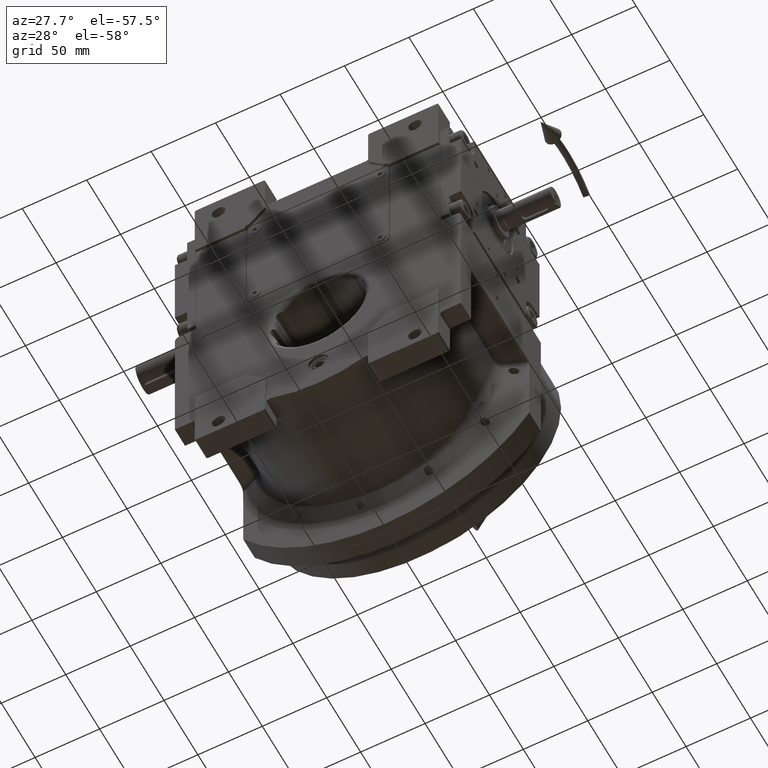
[diagram: clean part render]
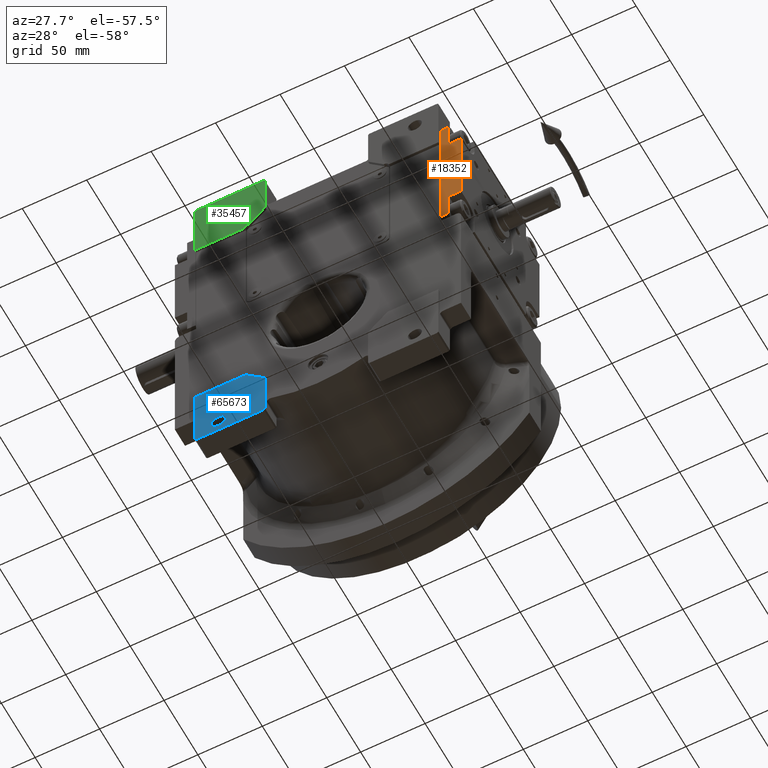
[diagram: same view with three faces highlighted in distinct colors, each labeled with its STEP entity id]
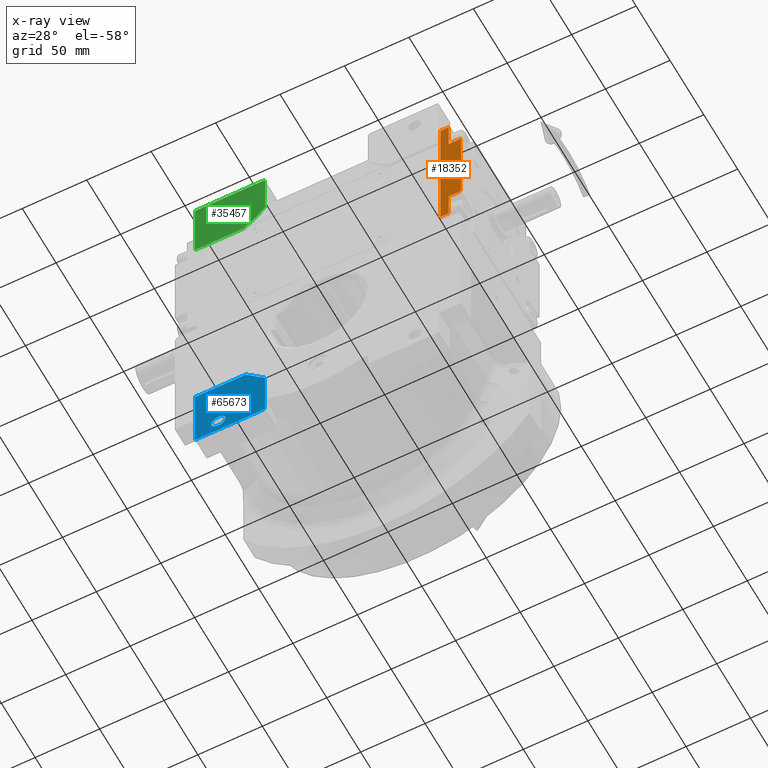
[diagram: x-ray of the same camera — body ghosted, the three highlighted faces saturated]
A machine part, auxiliary view with three faces highlighted in distinct colors.
The next image is the same camera in x-ray (body ghosted, the three faces saturated) — at least one of them is partly hidden behind the body in this view.
Their STEP definitions:

[orange] entity #18352 — the highlighted planar face has unit normal (0, -1, 0).
#1 = EDGE_CURVE ( 'NONE', #44348, #53429, #52238, .T. ) ;
#3552 = VERTEX_POINT ( 'NONE', #43085 ) ;
#4095 = ORIENTED_EDGE ( 'NONE', *, *, #23475, .F. ) ;
#4280 = ORIENTED_EDGE ( 'NONE', *, *, #11429, .T. ) ;
#4504 = DIRECTION ( 'NONE',  ( 5.662137425588299618E-14, 7.549516567451828092E-15, 1.000000000000000000 ) ) ;
#5056 = CARTESIAN_POINT ( 'NONE',  ( -53.50000000000162004, -16.00000000000052935, -33.50000000000376588 ) ) ;
#5388 = LINE ( 'NONE', #5056, #33069 ) ;
#6778 = CARTESIAN_POINT ( 'NONE',  ( -53.50000000000304112, -5.273559366969493567E-13, -55.00000000000347455 ) ) ;
#7313 = CARTESIAN_POINT ( 'NONE',  ( -53.49999999999669598, 4.163336342344337027E-13, 54.99999999999644018 ) ) ;
#8290 = LINE ( 'NONE', #13502, #21841 ) ;
#8733 = CARTESIAN_POINT ( 'NONE',  ( -53.50000000000330402, -5.273559366969493567E-13, -58.00000000000348166 ) ) ;
#10859 = CARTESIAN_POINT ( 'NONE',  ( -53.49999999999810996, -16.00000000000000000, 33.49999999999727862 ) ) ;
#11429 = EDGE_CURVE ( 'NONE', #3552, #48123, #20808, .T. ) ;
#11688 = DIRECTION ( 'NONE',  ( 5.662137425588299618E-14, 7.549516567451828092E-15, 1.000000000000000000 ) ) ;
#12230 = VECTOR ( 'NONE', #23282, 1000.000000000000000 ) ;
#12672 = AXIS2_PLACEMENT_3D ( 'NONE', #8733, #62251, #4504 ) ;
#13502 = CARTESIAN_POINT ( 'NONE',  ( -53.50000000000330402, -6.500000000000519584, -55.00000000000347455 ) ) ;
#16704 = CARTESIAN_POINT ( 'NONE',  ( -53.49999999999837286, -6.499999999999992006, 33.49999999999769784 ) ) ;
#18352 = ADVANCED_FACE ( 'NONE', ( #61936 ), #20180, .T. ) ;
#19293 = EDGE_CURVE ( 'NONE', #53429, #41687, #25070, .T. ) ;
#20180 = PLANE ( 'NONE',  #12672 ) ;
#20446 = DIRECTION ( 'NONE',  ( -1.978114775870341592E-28, -1.000000000000000000, -7.549516567451820204E-15 ) ) ;
#20808 = LINE ( 'NONE', #37137, #38944 ) ;
#21661 = VECTOR ( 'NONE', #32069, 1000.000000000000000 ) ;
#21841 = VECTOR ( 'NONE', #66676, 1000.000000000000000 ) ;
#22107 = LINE ( 'NONE', #6778, #49673 ) ;
#22514 = VERTEX_POINT ( 'NONE', #35765 ) ;
#23282 = DIRECTION ( 'NONE',  ( -1.978114775870341592E-28, -1.000000000000000000, -7.549516567451820204E-15 ) ) ;
#23475 = EDGE_CURVE ( 'NONE', #43277, #41687, #54968, .T. ) ;
#25070 = LINE ( 'NONE', #46291, #54962 ) ;
#30059 = ORIENTED_EDGE ( 'NONE', *, *, #60323, .F. ) ;
#30997 = ORIENTED_EDGE ( 'NONE', *, *, #46447, .T. ) ;
#31320 = DIRECTION ( 'NONE',  ( 5.662137425588299618E-14, 7.549516567451828092E-15, 1.000000000000000000 ) ) ;
#31390 = EDGE_CURVE ( 'NONE', #22514, #32628, #63260, .T. ) ;
#32069 = DIRECTION ( 'NONE',  ( 1.978114775870341592E-28, 1.000000000000000000, 7.549516567451820204E-15 ) ) ;
#32628 = VERTEX_POINT ( 'NONE', #62301 ) ;
#33069 = VECTOR ( 'NONE', #63480, 1000.000000000000000 ) ;
#33080 = ORIENTED_EDGE ( 'NONE', *, *, #48737, .T. ) ;
#33918 = VECTOR ( 'NONE', #47942, 1000.000000000000000 ) ;
#34313 = ORIENTED_EDGE ( 'NONE', *, *, #19293, .T. ) ;
#35765 = CARTESIAN_POINT ( 'NONE',  ( -53.50000000000162004, -16.00000000000052935, -33.50000000000376588 ) ) ;
#37137 = CARTESIAN_POINT ( 'NONE',  ( -53.50000000000304112, -5.273559366969493567E-13, -55.00000000000347455 ) ) ;
#37518 = CARTESIAN_POINT ( 'NONE',  ( -53.50000000000162004, -16.00000000000052935, -33.50000000000376588 ) ) ;
#38944 = VECTOR ( 'NONE', #20446, 1000.000000000000000 ) ;
#41687 = VERTEX_POINT ( 'NONE', #42305 ) ;
#42305 = CARTESIAN_POINT ( 'NONE',  ( -53.49999999999695888, -6.499999999999589662, 54.99999999999749889 ) ) ;
#42500 = ORIENTED_EDGE ( 'NONE', *, *, #31390, .F. ) ;
#43085 = CARTESIAN_POINT ( 'NONE',  ( -53.50000000000304112, -5.273559366969493567E-13, -55.00000000000347455 ) ) ;
#43277 = VERTEX_POINT ( 'NONE', #57627 ) ;
#44348 = VERTEX_POINT ( 'NONE', #51899 ) ;
#46291 = CARTESIAN_POINT ( 'NONE',  ( -53.49999999999837286, -6.499999999999992006, 33.49999999999769784 ) ) ;
#46447 = EDGE_CURVE ( 'NONE', #48123, #32628, #8290, .T. ) ;
#47942 = DIRECTION ( 'NONE',  ( 1.978114775870341592E-28, 1.000000000000000000, 7.549516567451820204E-15 ) ) ;
#48123 = VERTEX_POINT ( 'NONE', #62161 ) ;
#48737 = EDGE_CURVE ( 'NONE', #22514, #44348, #5388, .T. ) ;
#49673 = VECTOR ( 'NONE', #11688, 1000.000000000000000 ) ;
#50735 = EDGE_LOOP ( 'NONE', ( #30059, #4280, #30997, #42500, #33080, #55387, #34313, #4095 ) ) ;
#51899 = CARTESIAN_POINT ( 'NONE',  ( -53.49999999999810996, -16.00000000000000000, 33.49999999999727862 ) ) ;
#52238 = LINE ( 'NONE', #10859, #21661 ) ;
#53429 = VERTEX_POINT ( 'NONE', #16704 ) ;
#54962 = VECTOR ( 'NONE', #31320, 1000.000000000000000 ) ;
#54968 = LINE ( 'NONE', #7313, #12230 ) ;
#55387 = ORIENTED_EDGE ( 'NONE', *, *, #1, .T. ) ;
#57627 = CARTESIAN_POINT ( 'NONE',  ( -53.49999999999669598, 4.163336342344337027E-13, 54.99999999999644018 ) ) ;
#60323 = EDGE_CURVE ( 'NONE', #3552, #43277, #22107, .T. ) ;
#61936 = FACE_OUTER_BOUND ( 'NONE', #50735, .T. ) ;
#62161 = CARTESIAN_POINT ( 'NONE',  ( -53.50000000000330402, -6.500000000000519584, -55.00000000000347455 ) ) ;
#62251 = DIRECTION ( 'NONE',  ( -1.000000000000000000, 6.571413692480986833E-28, 5.662137425588299618E-14 ) ) ;
#62301 = CARTESIAN_POINT ( 'NONE',  ( -53.50000000000188294, -6.500000000000117240, -33.50000000000376588 ) ) ;
#63260 = LINE ( 'NONE', #37518, #33918 ) ;
#63480 = DIRECTION ( 'NONE',  ( 5.662137425588299618E-14, 7.549516567451828092E-15, 1.000000000000000000 ) ) ;
#66676 = DIRECTION ( 'NONE',  ( 5.662137425588299618E-14, 7.549516567451828092E-15, 1.000000000000000000 ) ) ;

[blue] entity #65673 — the highlighted planar face has unit normal (0, -1, 0).
#1353 = VECTOR ( 'NONE', #68192, 1000.000000000000000 ) ;
#4656 = DIRECTION ( 'NONE',  ( -0.7071067811865474617, 0.000000000000000000, 0.7071067811865474617 ) ) ;
#5211 = EDGE_LOOP ( 'NONE', ( #6673, #46357 ) ) ;
#5299 = VECTOR ( 'NONE', #15277, 1000.000000000000114 ) ;
#6522 = DIRECTION ( 'NONE',  ( 0.7071067811865474617, 0.000000000000000000, -0.7071067811865474617 ) ) ;
#6673 = ORIENTED_EDGE ( 'NONE', *, *, #17862, .T. ) ;
#6984 = DIRECTION ( 'NONE',  ( 0.000000000000000000, 1.000000000000000000, 0.000000000000000000 ) ) ;
#8180 = VECTOR ( 'NONE', #6522, 1000.000000000000114 ) ;
#9437 = AXIS2_PLACEMENT_3D ( 'NONE', #40200, #57242, #29058 ) ;
#11407 = LINE ( 'NONE', #58707, #8180 ) ;
#12719 = CARTESIAN_POINT ( 'NONE',  ( -40.00000000000000000, -55.50000000000000000, -99.00000000000000000 ) ) ;
#14529 = LINE ( 'NONE', #20810, #42355 ) ;
#15277 = DIRECTION ( 'NONE',  ( 0.7071067811865474617, 0.000000000000000000, 0.7071067811865474617 ) ) ;
#15441 = FACE_BOUND ( 'NONE', #5211, .T. ) ;
#15716 = CARTESIAN_POINT ( 'NONE',  ( -93.50000000000000000, -55.50000000000000000, -100.0000000000000000 ) ) ;
#16054 = VERTEX_POINT ( 'NONE', #27850 ) ;
#16827 = VECTOR ( 'NONE', #4656, 1000.000000000000114 ) ;
#17862 = EDGE_CURVE ( 'NONE', #26681, #16054, #21657, .T. ) ;
#19360 = FACE_OUTER_BOUND ( 'NONE', #41527, .T. ) ;
#20810 = CARTESIAN_POINT ( 'NONE',  ( -94.50000000000000000, -55.50000000000000000, -45.00000000000000000 ) ) ;
#21657 = CIRCLE ( 'NONE', #9437, 5.500000000000005329 ) ;
#22407 = EDGE_CURVE ( 'NONE', #23029, #28307, #63238, .T. ) ;
#22444 = ORIENTED_EDGE ( 'NONE', *, *, #53841, .T. ) ;
#22974 = DIRECTION ( 'NONE',  ( -1.000000000000000000, 0.000000000000000000, 0.000000000000000000 ) ) ;
#23029 = VERTEX_POINT ( 'NONE', #65450 ) ;
#23805 = LINE ( 'NONE', #12719, #64919 ) ;
#26259 = AXIS2_PLACEMENT_3D ( 'NONE', #48050, #6984, #53607 ) ;
#26311 = CARTESIAN_POINT ( 'NONE',  ( -94.50000000000000000, -55.50000000000000000, -45.00000000000000000 ) ) ;
#26681 = VERTEX_POINT ( 'NONE', #52305 ) ;
#27138 = EDGE_CURVE ( 'NONE', #36252, #44682, #62398, .T. ) ;
#27850 = CARTESIAN_POINT ( 'NONE',  ( -81.69999999999998863, -55.50000000000000000, -89.00000000000000000 ) ) ;
#28307 = VERTEX_POINT ( 'NONE', #65564 ) ;
#28532 = ORIENTED_EDGE ( 'NONE', *, *, #35666, .T. ) ;
#29058 = DIRECTION ( 'NONE',  ( 1.000000000000000000, 0.000000000000000000, 0.000000000000000000 ) ) ;
#29097 = CARTESIAN_POINT ( 'NONE',  ( -94.50000000000000000, -55.50000000000000000, -99.00000000000000000 ) ) ;
#30913 = DIRECTION ( 'NONE',  ( 0.000000000000000000, 0.000000000000000000, -1.000000000000000000 ) ) ;
#31285 = CARTESIAN_POINT ( 'NONE',  ( -55.00000000000000000, -55.50000000000000000, -45.00000000000000000 ) ) ;
#31566 = ORIENTED_EDGE ( 'NONE', *, *, #41988, .T. ) ;
#34111 = LINE ( 'NONE', #66083, #36547 ) ;
#35028 = DIRECTION ( 'NONE',  ( 0.000000000000000000, -1.000000000000000000, 0.000000000000000000 ) ) ;
#35666 = EDGE_CURVE ( 'NONE', #44682, #61217, #34111, .T. ) ;
#36252 = VERTEX_POINT ( 'NONE', #49332 ) ;
#36299 = CARTESIAN_POINT ( 'NONE',  ( 0.000000000000000000, -55.50000000000000000, 0.000000000000000000 ) ) ;
#36547 = VECTOR ( 'NONE', #22974, 1000.000000000000000 ) ;
#36904 = LINE ( 'NONE', #15716, #1353 ) ;
#38354 = ORIENTED_EDGE ( 'NONE', *, *, #55707, .T. ) ;
#38801 = EDGE_CURVE ( 'NONE', #61217, #41492, #14529, .T. ) ;
#40200 = CARTESIAN_POINT ( 'NONE',  ( -76.20000000000000284, -55.50000000000000000, -89.00000000000000000 ) ) ;
#40583 = PLANE ( 'NONE',  #60632 ) ;
#41492 = VERTEX_POINT ( 'NONE', #29097 ) ;
#41527 = EDGE_LOOP ( 'NONE', ( #31566, #59626, #38354, #63500, #28532, #44545, #22444 ) ) ;
#41988 = EDGE_CURVE ( 'NONE', #58797, #23029, #36904, .T. ) ;
#42355 = VECTOR ( 'NONE', #30913, 1000.000000000000000 ) ;
#44545 = ORIENTED_EDGE ( 'NONE', *, *, #38801, .T. ) ;
#44682 = VERTEX_POINT ( 'NONE', #31285 ) ;
#45812 = EDGE_CURVE ( 'NONE', #16054, #26681, #56255, .T. ) ;
#46357 = ORIENTED_EDGE ( 'NONE', *, *, #45812, .T. ) ;
#47260 = CARTESIAN_POINT ( 'NONE',  ( -41.00000000000000000, -55.50000000000000000, -100.0000000000000000 ) ) ;
#48050 = CARTESIAN_POINT ( 'NONE',  ( -76.20000000000000284, -55.50000000000000000, -89.00000000000000000 ) ) ;
#49332 = CARTESIAN_POINT ( 'NONE',  ( -40.00000000000000000, -55.50000000000000000, -60.00000000000000000 ) ) ;
#51004 = DIRECTION ( 'NONE',  ( -1.000000000000000000, 0.000000000000000000, 0.000000000000000000 ) ) ;
#52305 = CARTESIAN_POINT ( 'NONE',  ( -70.70000000000000284, -55.50000000000000000, -89.00000000000000000 ) ) ;
#52326 = CARTESIAN_POINT ( 'NONE',  ( -40.00000000000000000, -55.50000000000000000, -60.00000000000000000 ) ) ;
#53607 = DIRECTION ( 'NONE',  ( -1.000000000000000000, 0.000000000000000000, 0.000000000000000000 ) ) ;
#53841 = EDGE_CURVE ( 'NONE', #41492, #58797, #11407, .T. ) ;
#55707 = EDGE_CURVE ( 'NONE', #28307, #36252, #23805, .T. ) ;
#56255 = CIRCLE ( 'NONE', #26259, 5.500000000000005329 ) ;
#57242 = DIRECTION ( 'NONE',  ( 0.000000000000000000, 1.000000000000000000, 0.000000000000000000 ) ) ;
#58707 = CARTESIAN_POINT ( 'NONE',  ( -94.50000000000000000, -55.50000000000000000, -99.00000000000000000 ) ) ;
#58797 = VERTEX_POINT ( 'NONE', #62631 ) ;
#59626 = ORIENTED_EDGE ( 'NONE', *, *, #22407, .T. ) ;
#60632 = AXIS2_PLACEMENT_3D ( 'NONE', #36299, #35028, #51004 ) ;
#61217 = VERTEX_POINT ( 'NONE', #26311 ) ;
#61359 = DIRECTION ( 'NONE',  ( 0.000000000000000000, 0.000000000000000000, 1.000000000000000000 ) ) ;
#62398 = LINE ( 'NONE', #52326, #16827 ) ;
#62631 = CARTESIAN_POINT ( 'NONE',  ( -93.50000000000000000, -55.50000000000000000, -100.0000000000000000 ) ) ;
#63238 = LINE ( 'NONE', #47260, #5299 ) ;
#63500 = ORIENTED_EDGE ( 'NONE', *, *, #27138, .T. ) ;
#64919 = VECTOR ( 'NONE', #61359, 1000.000000000000000 ) ;
#65450 = CARTESIAN_POINT ( 'NONE',  ( -41.00000000000000000, -55.50000000000000000, -100.0000000000000000 ) ) ;
#65564 = CARTESIAN_POINT ( 'NONE',  ( -40.00000000000000000, -55.50000000000000000, -99.00000000000000000 ) ) ;
#65673 = ADVANCED_FACE ( 'NONE', ( #15441, #19360 ), #40583, .T. ) ;
#66083 = CARTESIAN_POINT ( 'NONE',  ( -55.00000000000000000, -55.50000000000000000, -45.00000000000000000 ) ) ;
#68192 = DIRECTION ( 'NONE',  ( 1.000000000000000000, 0.000000000000000000, 0.000000000000000000 ) ) ;

[green] entity #35457 — the highlighted planar face has unit normal (0, -1, 0).
#1454 = DIRECTION ( 'NONE',  ( 0.000000000000000000, 0.000000000000000000, 1.000000000000000000 ) ) ;
#1721 = ORIENTED_EDGE ( 'NONE', *, *, #48176, .T. ) ;
#4515 = DIRECTION ( 'NONE',  ( -0.7071067811865474617, 0.000000000000000000, -0.7071067811865474617 ) ) ;
#4830 = LINE ( 'NONE', #52150, #10994 ) ;
#8275 = VECTOR ( 'NONE', #4515, 1000.000000000000114 ) ;
#9413 = AXIS2_PLACEMENT_3D ( 'NONE', #59963, #29631, #45611 ) ;
#9547 = CARTESIAN_POINT ( 'NONE',  ( -39.99999999999929656, -55.50000000000000000, 158.0000000000000000 ) ) ;
#10112 = CARTESIAN_POINT ( 'NONE',  ( -93.50000000000000000, -55.50000000000000000, 193.0000000000000000 ) ) ;
#10970 = VERTEX_POINT ( 'NONE', #63989 ) ;
#10994 = VECTOR ( 'NONE', #29915, 1000.000000000000000 ) ;
#12356 = CARTESIAN_POINT ( 'NONE',  ( -55.87298334620739837, -55.50000000000000000, 143.0000000000000000 ) ) ;
#13696 = VECTOR ( 'NONE', #24768, 1000.000000000000000 ) ;
#13897 = CARTESIAN_POINT ( 'NONE',  ( -94.50000000000000000, -55.50000000000000000, 192.0000000000000000 ) ) ;
#14078 = EDGE_CURVE ( 'NONE', #67410, #29954, #33474, .T. ) ;
#14210 = CARTESIAN_POINT ( 'NONE',  ( -39.99999999999929656, -55.50000000000000000, 192.0000000000000000 ) ) ;
#15665 = EDGE_CURVE ( 'NONE', #54615, #55535, #52237, .T. ) ;
#17007 = EDGE_CURVE ( 'NONE', #19610, #55535, #24925, .T. ) ;
#17098 = ORIENTED_EDGE ( 'NONE', *, *, #36065, .T. ) ;
#17446 = CARTESIAN_POINT ( 'NONE',  ( -40.99999999999930367, -55.50000000000000000, 193.0000000000000000 ) ) ;
#19610 = VERTEX_POINT ( 'NONE', #49704 ) ;
#20603 = CARTESIAN_POINT ( 'NONE',  ( -94.50000000000000000, -55.50000000000000000, 143.0000000000000000 ) ) ;
#22198 = VERTEX_POINT ( 'NONE', #60495 ) ;
#22704 = EDGE_CURVE ( 'NONE', #53458, #54615, #59384, .T. ) ;
#23169 = VECTOR ( 'NONE', #39315, 1000.000000000000000 ) ;
#24768 = DIRECTION ( 'NONE',  ( 1.000000000000000000, 0.000000000000000000, 0.000000000000000000 ) ) ;
#24925 = CIRCLE ( 'NONE', #54912, 4.000000000000003553 ) ;
#24981 = LINE ( 'NONE', #14210, #46311 ) ;
#25794 = FACE_BOUND ( 'NONE', #48949, .T. ) ;
#26180 = CARTESIAN_POINT ( 'NONE',  ( -39.99999999999929656, -55.50000000000000000, 192.0000000000000000 ) ) ;
#26698 = EDGE_LOOP ( 'NONE', ( #36654, #54481, #37323, #59812, #27706, #38063, #66071, #1721 ) ) ;
#27190 = CARTESIAN_POINT ( 'NONE',  ( -52.00000000000000000, -55.50000000000000000, 142.0000000000000000 ) ) ;
#27706 = ORIENTED_EDGE ( 'NONE', *, *, #17007, .F. ) ;
#29261 = ORIENTED_EDGE ( 'NONE', *, *, #56887, .T. ) ;
#29631 = DIRECTION ( 'NONE',  ( 0.000000000000000000, 1.000000000000000000, 0.000000000000000000 ) ) ;
#29915 = DIRECTION ( 'NONE',  ( 0.7071067811865480168, 0.000000000000000000, 0.7071067811865470176 ) ) ;
#29954 = VERTEX_POINT ( 'NONE', #26180 ) ;
#32315 = DIRECTION ( 'NONE',  ( -1.000000000000000000, 0.000000000000000000, 0.000000000000000000 ) ) ;
#32665 = DIRECTION ( 'NONE',  ( 0.000000000000000000, 1.000000000000000000, 0.000000000000000000 ) ) ;
#32750 = PLANE ( 'NONE',  #53024 ) ;
#33099 = DIRECTION ( 'NONE',  ( 0.000000000000000000, -1.000000000000000000, 0.000000000000000000 ) ) ;
#33474 = LINE ( 'NONE', #49120, #59957 ) ;
#35457 = ADVANCED_FACE ( 'NONE', ( #25794, #45994 ), #32750, .T. ) ;
#35744 = EDGE_CURVE ( 'NONE', #22198, #63710, #66423, .T. ) ;
#35908 = EDGE_CURVE ( 'NONE', #19610, #67410, #4830, .T. ) ;
#36065 = EDGE_CURVE ( 'NONE', #10970, #58536, #44330, .T. ) ;
#36654 = ORIENTED_EDGE ( 'NONE', *, *, #35744, .T. ) ;
#37323 = ORIENTED_EDGE ( 'NONE', *, *, #22704, .T. ) ;
#37607 = CARTESIAN_POINT ( 'NONE',  ( 0.000000000000000000, -55.50000000000000000, 0.000000000000000000 ) ) ;
#38063 = ORIENTED_EDGE ( 'NONE', *, *, #35908, .T. ) ;
#39315 = DIRECTION ( 'NONE',  ( -1.000000000000000000, 0.000000000000000000, 0.000000000000000000 ) ) ;
#41303 = DIRECTION ( 'NONE',  ( -0.7071067811865474617, 0.000000000000000000, 0.7071067811865474617 ) ) ;
#43183 = DIRECTION ( 'NONE',  ( -1.000000000000000000, 0.000000000000000000, 0.000000000000000000 ) ) ;
#44330 = CIRCLE ( 'NONE', #50988, 5.500000000000005329 ) ;
#45611 = DIRECTION ( 'NONE',  ( 1.000000000000000000, 0.000000000000000000, 0.000000000000000000 ) ) ;
#45994 = FACE_OUTER_BOUND ( 'NONE', #26698, .T. ) ;
#46311 = VECTOR ( 'NONE', #41303, 1000.000000000000114 ) ;
#47292 = CARTESIAN_POINT ( 'NONE',  ( -76.20000000000000284, -55.50000000000000000, 178.0000000000000000 ) ) ;
#48176 = EDGE_CURVE ( 'NONE', #29954, #22198, #24981, .T. ) ;
#48423 = DIRECTION ( 'NONE',  ( 1.613292832658429083E-13, 0.000000000000000000, 1.000000000000000000 ) ) ;
#48949 = EDGE_LOOP ( 'NONE', ( #29261, #17098 ) ) ;
#48954 = CARTESIAN_POINT ( 'NONE',  ( -94.50000000000000000, -55.50000000000000000, 192.0000000000000000 ) ) ;
#49120 = CARTESIAN_POINT ( 'NONE',  ( -39.99999999999929656, -55.50000000000000000, 158.0000000000000000 ) ) ;
#49704 = CARTESIAN_POINT ( 'NONE',  ( -51.99999999999930367, -55.50000000000000000, 146.0000000000000000 ) ) ;
#50988 = AXIS2_PLACEMENT_3D ( 'NONE', #47292, #32665, #32315 ) ;
#52150 = CARTESIAN_POINT ( 'NONE',  ( -51.99999999999930367, -55.50000000000000000, 146.0000000000000000 ) ) ;
#52237 = LINE ( 'NONE', #20603, #13696 ) ;
#52649 = CARTESIAN_POINT ( 'NONE',  ( -70.70000000000000284, -55.50000000000000000, 178.0000000000000000 ) ) ;
#52903 = LINE ( 'NONE', #10112, #8275 ) ;
#53024 = AXIS2_PLACEMENT_3D ( 'NONE', #37607, #33099, #43183 ) ;
#53325 = CARTESIAN_POINT ( 'NONE',  ( -94.50000000000000000, -55.50000000000000000, 143.0000000000000000 ) ) ;
#53458 = VERTEX_POINT ( 'NONE', #13897 ) ;
#53855 = CIRCLE ( 'NONE', #9413, 5.500000000000005329 ) ;
#54481 = ORIENTED_EDGE ( 'NONE', *, *, #57044, .T. ) ;
#54615 = VERTEX_POINT ( 'NONE', #53325 ) ;
#54912 = AXIS2_PLACEMENT_3D ( 'NONE', #27190, #58830, #48423 ) ;
#55535 = VERTEX_POINT ( 'NONE', #12356 ) ;
#56887 = EDGE_CURVE ( 'NONE', #58536, #10970, #53855, .T. ) ;
#57044 = EDGE_CURVE ( 'NONE', #63710, #53458, #52903, .T. ) ;
#58536 = VERTEX_POINT ( 'NONE', #52649 ) ;
#58830 = DIRECTION ( 'NONE',  ( 0.000000000000000000, -1.000000000000000000, 0.000000000000000000 ) ) ;
#59384 = LINE ( 'NONE', #48954, #63100 ) ;
#59812 = ORIENTED_EDGE ( 'NONE', *, *, #15665, .T. ) ;
#59957 = VECTOR ( 'NONE', #1454, 1000.000000000000000 ) ;
#59963 = CARTESIAN_POINT ( 'NONE',  ( -76.20000000000000284, -55.50000000000000000, 178.0000000000000000 ) ) ;
#60495 = CARTESIAN_POINT ( 'NONE',  ( -40.99999999999930367, -55.50000000000000000, 193.0000000000000000 ) ) ;
#62221 = CARTESIAN_POINT ( 'NONE',  ( -93.50000000000000000, -55.50000000000000000, 193.0000000000000000 ) ) ;
#63100 = VECTOR ( 'NONE', #64267, 1000.000000000000000 ) ;
#63710 = VERTEX_POINT ( 'NONE', #62221 ) ;
#63989 = CARTESIAN_POINT ( 'NONE',  ( -81.69999999999998863, -55.50000000000000000, 178.0000000000000000 ) ) ;
#64267 = DIRECTION ( 'NONE',  ( 0.000000000000000000, 0.000000000000000000, -1.000000000000000000 ) ) ;
#66071 = ORIENTED_EDGE ( 'NONE', *, *, #14078, .T. ) ;
#66423 = LINE ( 'NONE', #17446, #23169 ) ;
#67410 = VERTEX_POINT ( 'NONE', #9547 ) ;